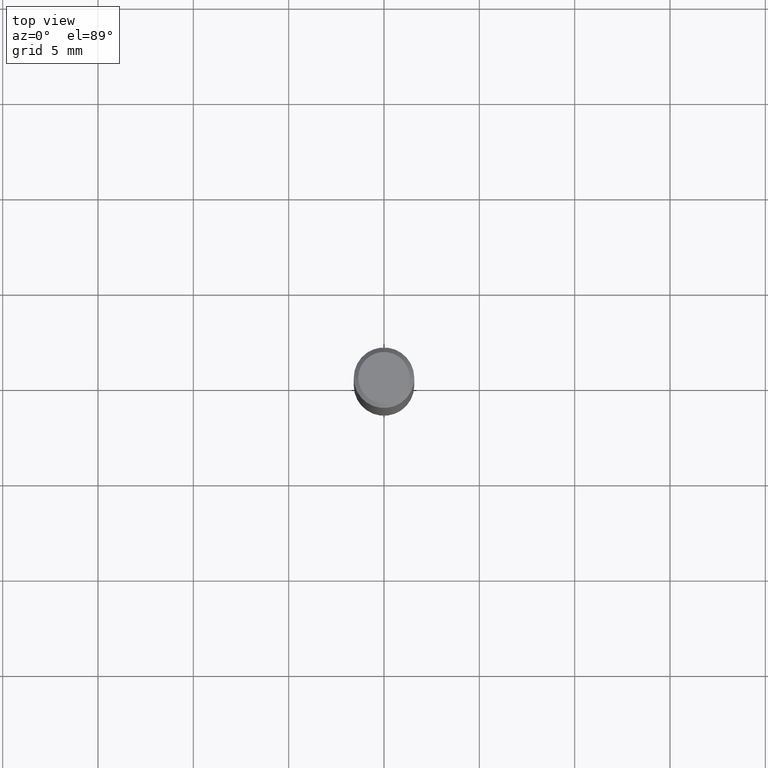
[diagram: clean part render]
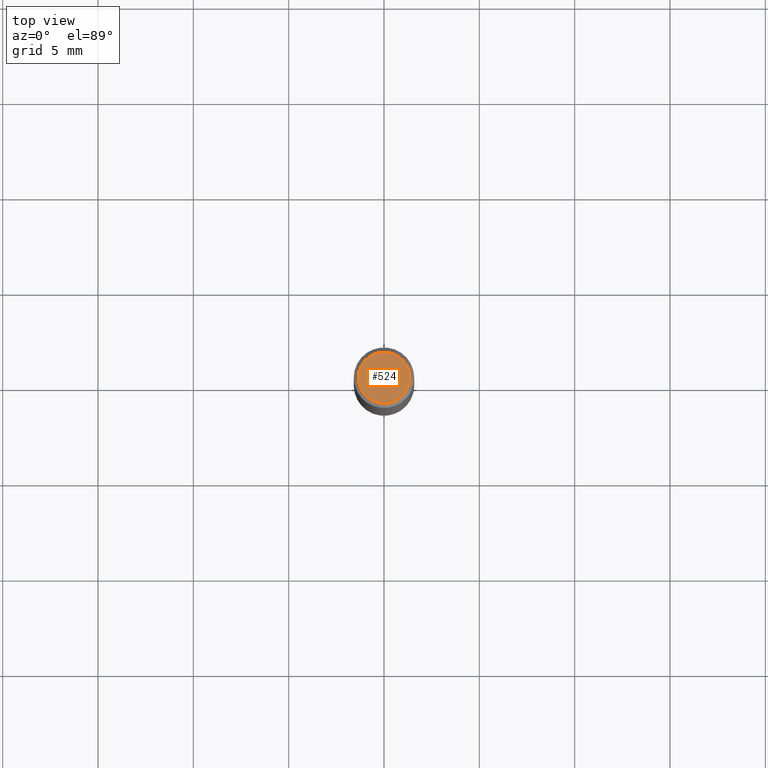
[diagram: same view with one face highlighted and labeled with its STEP entity id]
A machine part, top view. The second image highlights one B-rep face of the part: STEP entity #524.
In plain terms, the highlighted planar face has unit normal (0, -0, -1).
Its self-contained STEP definition (entity closure, byte-faithful):
#36 = CARTESIAN_POINT ( 'NONE',  ( 0.05312499999999999861, -4.129888592719939842E-16, -5.787680772767651417E-18 ) ) ;
#39 = CARTESIAN_POINT ( 'NONE',  ( -0.05312499999999999861, 3.873362110279099094E-16, -5.787680772773044021E-18 ) ) ;
#95 = DIRECTION ( 'NONE',  ( -2.445468806185136597E-29, 3.491481338843145583E-15, 1.000000000000000000 ) ) ;
#115 = DIRECTION ( 'NONE',  ( -2.445468806185136597E-29, 3.491481338843145583E-15, 1.000000000000000000 ) ) ;
#175 = CARTESIAN_POINT ( 'NONE',  ( 1.415359278996747967E-46, -2.020757941330909984E-32, -5.787680772770392401E-18 ) ) ;
#183 = DIRECTION ( 'NONE',  ( -1.000000000000000000, 6.982962677686265922E-15, -4.876176775795935793E-29 ) ) ;
#201 = CARTESIAN_POINT ( 'NONE',  ( 1.415359278996747967E-46, -2.020757941330909984E-32, -5.787680772770392401E-18 ) ) ;
#214 = CIRCLE ( 'NONE', #291, 0.05312499999999999861 ) ;
#237 = EDGE_LOOP ( 'NONE', ( #564, #554 ) ) ;
#267 = EDGE_CURVE ( 'NONE', #480, #571, #214, .T. ) ;
#271 = FACE_OUTER_BOUND ( 'NONE', #237, .T. ) ;
#277 = DIRECTION ( 'NONE',  ( 1.000000000000000000, -6.982962677686266711E-15, 4.875930095424100059E-29 ) ) ;
#291 = AXIS2_PLACEMENT_3D ( 'NONE', #201, #115, #327 ) ;
#327 = DIRECTION ( 'NONE',  ( 1.000000000000000000, -6.982962677686266711E-15, 4.875930095424100059E-29 ) ) ;
#359 = CARTESIAN_POINT ( 'NONE',  ( 7.076796394983739835E-47, -1.010378970665454992E-32, -2.893840386385196200E-18 ) ) ;
#365 = DIRECTION ( 'NONE',  ( 2.438088387897960049E-29, -3.491481338843145188E-15, -1.000000000000000000 ) ) ;
#398 = AXIS2_PLACEMENT_3D ( 'NONE', #175, #95, #277 ) ;
#467 = AXIS2_PLACEMENT_3D ( 'NONE', #359, #365, #183 ) ;
#480 = VERTEX_POINT ( 'NONE', #36 ) ;
#488 = PLANE ( 'NONE',  #467 ) ;
#524 = ADVANCED_FACE ( 'NONE', ( #271 ), #488, .F. ) ;
#554 = ORIENTED_EDGE ( 'NONE', *, *, #267, .T. ) ;
#564 = ORIENTED_EDGE ( 'NONE', *, *, #577, .T. ) ;
#571 = VERTEX_POINT ( 'NONE', #39 ) ;
#577 = EDGE_CURVE ( 'NONE', #571, #480, #580, .T. ) ;
#580 = CIRCLE ( 'NONE', #398, 0.05312499999999999861 ) ;